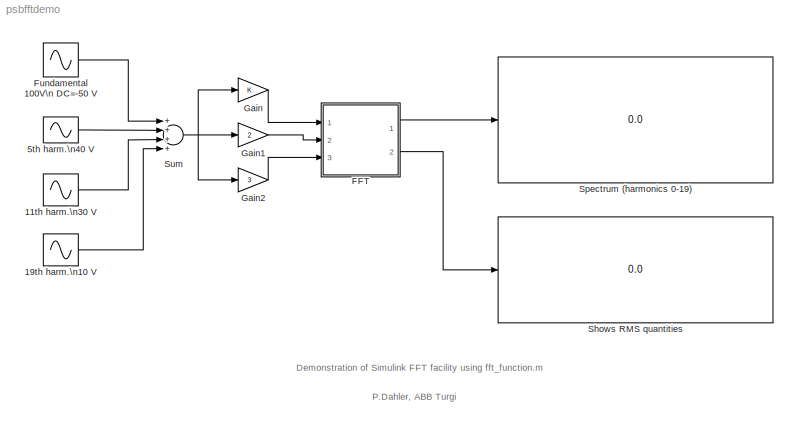
MODEL psbfftdemo
KIND model
BLOCK [Sin] 11th harm.\n30 V 
  Amplitude = 30
  Frequency = 11*50*2*pi
  Ports = [0, 1]
  SampleTime = 0
  SineType = Time based
BLOCK [Sin] 19th harm.\n10 V 
  Amplitude = 10
  Frequency = 19*50*2*pi
  Ports = [0, 1]
  SampleTime = 0
  SineType = Time based
BLOCK [Sin] 5th harm.\n40 V 
  Amplitude = 40
  Frequency = 5*50*2*pi
  Ports = [0, 1]
  SampleTime = 0
  SineType = Time based
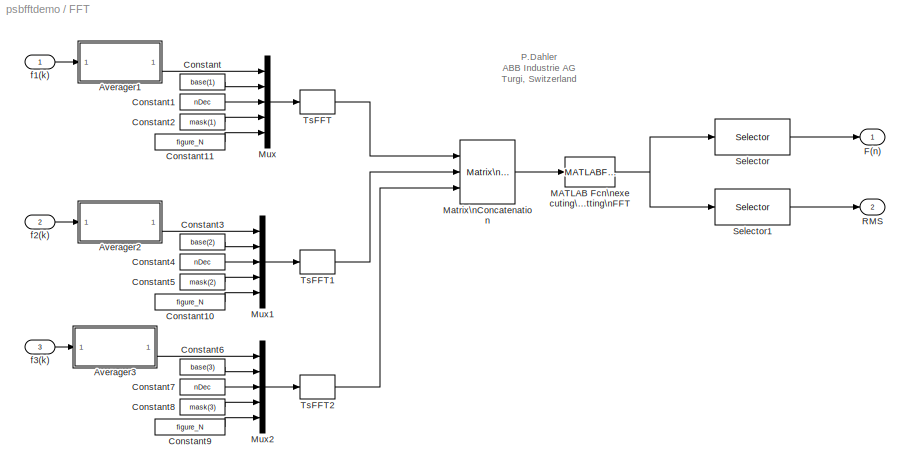
BLOCK [SubSystem] FFT
  MaskCallbackString = ||||||
  MaskDescription = This block  implements on-line FFT analysis  of 3  signals.\n\nIt can be used as a \"real time\" analyzer during simulation (note speed reduction !) or off line by reading the signals from workspace after simulation.\n\nThe F(n) output is a [N,3] matrix of the 3 signal spectra  (harmonic orders 0 to N-1), where N is the number of harmonics computed  given by : N= 1/f1/Ts/2.\nThe RMS output is a [5...<+393ch>
  MaskDisplay = color('blue');disp('FFT')
  MaskEnableString = on,on,on,on,on,on,on
  MaskIconFrame = on
  MaskIconOpaque = off
  MaskIconRotate = none
  MaskIconUnits = autoscale
  MaskInitialization = Navg=fix((1/f1)/Ts);
  MaskPromptString = Fundamental frequency f1 (Hz):|Sampling time Ts (s):|FFT Sampling time F(n)|Base peak value (1 for absolute , size=[1 nSignals ])|Decimals to display RMS values on spectrum (0 for no text)|Mask (nomally ones(1,nSignals))|Figure number
  MaskStyleString = edit,edit,edit,edit,edit,edit,edit
  MaskTabNameString = ,,,,,,
  MaskToolTipString = on,on,on,on,on,on,on
  MaskTunableValueString = on,on,on,on,on,on,on
  MaskType = Fast Fourier by Matlab Function
  MaskValueString = 50|500e-6|0.1|[1 1  1] |0|[1 -1 1]|1
  MaskVarAliasString = ,,,,,,
  MaskVariables = f1=@1;Ts=@2;TsFFT=@3;base=@4;nDec=@5;mask=@6;figure_N=@7;
  MaskVisibilityString = on,on,on,on,on,on,on
  MinAlgLoopOccurrences = off
  Ports = [3, 2]
  RTWSystemCode = Auto
  TreatAsAtomicUnit = off
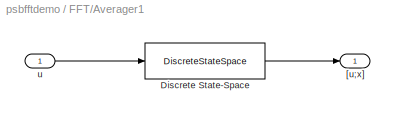
BLOCK [SubSystem] FFT/Averager1
  MaskCallbackString = ||
  MaskDescription = This block is a shift register storing values [u(k) u(k-1) ... u(k-(Navg-1))]' . This vector can be used for a FFT analysis.
  MaskDisplay = disp('Shift\\nRegister')
  MaskEnableString = on,on,on
  MaskHelp = This block is a shift register storing values [u(k) u(k-1) ... u(k-(Navg-1))]' . This vector can be used for a FFT analysis.
  MaskIconFrame = on
  MaskIconOpaque = off
  MaskIconRotate = none
  MaskIconUnits = autoscale
  MaskInitialization = %Discrete State Space model of averager\n%one scalar input\n%Navg sized output [in(k) in(k-1) .... in(k-(Navg-1))]\nQ=eye(Navg-1);\nA=[Q(:,2:length(Q))  Q(:,1)] ;\nA(1,Navg-1)=0;\nB=[1 ; zeros(Navg-2,1)];\nC=eye(Navg) ;\nC=C(:,2:length(C));\nD=[1 ; zeros(Navg-1,1)];\n\n\n\n  <repeated x3 — deduplicated; at blocks: Averager1, Averager2, Averager3>
  MaskPromptString = Number of Samples inl. in(k)|Inititial Condition|Sample Time (-1 for inherited)
  MaskStyleString = edit,edit,edit
  MaskTabNameString = ,,
  MaskToolTipString = on,on,on
  MaskTunableValueString = on,on,on
  MaskType = Shift Register with discrete state space block
  MaskValueString = Navg|0|Ts
  MaskVarAliasString = ,,
  MaskVariables = Navg=@1;x0=@2;Ts=@3;
  MaskVisibilityString = on,on,on
  MinAlgLoopOccurrences = off
  Ports = [1, 1]
  RTWSystemCode = Auto
  TreatAsAtomicUnit = off
BLOCK [DiscreteStateSpace] FFT/Averager1/Discrete State-Space
  A = A
  B = B
  C = C
  D = D
  SampleTime = Ts
  X0 = x0
BLOCK [Outport] FFT/Averager1/[u;x]
  BusOutputAsStruct = off
  IconDisplay = Port number
BLOCK [Inport] FFT/Averager1/u
  IconDisplay = Port number
  LatchInput = off
  Port = 1
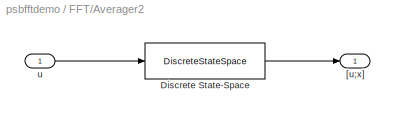
BLOCK [SubSystem] FFT/Averager2
  MaskCallbackString = ||
  MaskDescription = This block is a shift register storing values [u(k) u(k-1) ... u(k-(Navg-1))]' . This vector can be used for a FFT analysis.
  MaskDisplay = disp('Shift\\nRegister')
  MaskEnableString = on,on,on
  MaskHelp = This block is a shift register storing values [u(k) u(k-1) ... u(k-(Navg-1))]' . This vector can be used for a FFT analysis.
  MaskIconFrame = on
  MaskIconOpaque = off
  MaskIconRotate = none
  MaskIconUnits = autoscale
  MaskPromptString = Number of Samples inl. in(k)|Inititial Condition|Sample Time (-1 for inherited)
  MaskStyleString = edit,edit,edit
  MaskTabNameString = ,,
  MaskToolTipString = on,on,on
  MaskTunableValueString = on,on,on
  MaskType = Shift Register with discrete state space block
  MaskValueString = Navg|0|Ts
  MaskVarAliasString = ,,
  MaskVariables = Navg=@1;x0=@2;Ts=@3;
  MaskVisibilityString = on,on,on
  MinAlgLoopOccurrences = off
  Ports = [1, 1]
  RTWSystemCode = Auto
  TreatAsAtomicUnit = off
BLOCK [DiscreteStateSpace] FFT/Averager2/Discrete State-Space
  A = A
  B = B
  C = C
  D = D
  SampleTime = Ts
  X0 = x0
BLOCK [Outport] FFT/Averager2/[u;x]
  BusOutputAsStruct = off
  IconDisplay = Port number
BLOCK [Inport] FFT/Averager2/u
  IconDisplay = Port number
  LatchInput = off
  Port = 1
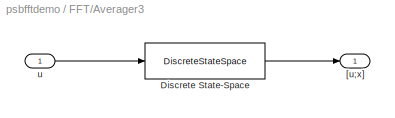
BLOCK [SubSystem] FFT/Averager3
  MaskCallbackString = ||
  MaskDescription = This block is a shift register storing values [u(k) u(k-1) ... u(k-(Navg-1))]' . This vector can be used for a FFT analysis.
  MaskDisplay = disp('Shift\\nRegister')
  MaskEnableString = on,on,on
  MaskHelp = This block is a shift register storing values [u(k) u(k-1) ... u(k-(Navg-1))]' . This vector can be used for a FFT analysis.
  MaskIconFrame = on
  MaskIconOpaque = off
  MaskIconRotate = none
  MaskIconUnits = autoscale
  MaskPromptString = Number of Samples inl. in(k)|Inititial Condition|Sample Time (-1 for inherited)
  MaskStyleString = edit,edit,edit
  MaskTabNameString = ,,
  MaskToolTipString = on,on,on
  MaskTunableValueString = on,on,on
  MaskType = Shift Register with discrete state space block
  MaskValueString = Navg|0|Ts
  MaskVarAliasString = ,,
  MaskVariables = Navg=@1;x0=@2;Ts=@3;
  MaskVisibilityString = on,on,on
  MinAlgLoopOccurrences = off
  Ports = [1, 1]
  RTWSystemCode = Auto
  TreatAsAtomicUnit = off
BLOCK [DiscreteStateSpace] FFT/Averager3/Discrete State-Space
  A = A
  B = B
  C = C
  D = D
  SampleTime = Ts
  X0 = x0
BLOCK [Outport] FFT/Averager3/[u;x]
  BusOutputAsStruct = off
  IconDisplay = Port number
BLOCK [Inport] FFT/Averager3/u
  IconDisplay = Port number
  LatchInput = off
  Port = 1
BLOCK [Constant] FFT/Constant
  Value = base(1)
BLOCK [Constant] FFT/Constant1
  Value = nDec
BLOCK [Constant] FFT/Constant10
  Value = figure_N
BLOCK [Constant] FFT/Constant11
  Value = figure_N
BLOCK [Constant] FFT/Constant2
  Value = mask(1)
BLOCK [Constant] FFT/Constant3
  Value = base(2)
BLOCK [Constant] FFT/Constant4
  Value = nDec
BLOCK [Constant] FFT/Constant5
  Value = mask(2)
BLOCK [Constant] FFT/Constant6
  Value = base(3)
BLOCK [Constant] FFT/Constant7
  Value = nDec
BLOCK [Constant] FFT/Constant8
  Value = mask(3)
BLOCK [Constant] FFT/Constant9
  Value = figure_N
BLOCK [Outport] FFT/F(n)
  BusOutputAsStruct = off
  IconDisplay = Port number
BLOCK [MATLABFcn] FFT/MATLAB Fcn\nexecuting\nand plotting\nFFT
  MATLABFcn = fft_function
  Output1D = off
  OutputDimensions = [ceil(Navg/2) + 5  3]
BLOCK [Reference] FFT/Matrix\nConcatenation  REF=simulink/Math\nOperations/Matrix\nConcatenation
  Ports = [3, 1]
  SourceBlock = simulink/Math\nOperations/Matrix\nConcatenation
  SourceType = Matrix Concatenation
  catMethod = Horizontal
  numInports = 3
BLOCK [Mux] FFT/Mux
  DisplayOption = bar
  Inputs = 5
  Ports = [5, 1]
BLOCK [Mux] FFT/Mux1
  DisplayOption = bar
  Inputs = 5
  Ports = [5, 1]
BLOCK [Mux] FFT/Mux2
  DisplayOption = bar
  Inputs = 5
  Ports = [5, 1]
BLOCK [Outport] FFT/RMS
  BusOutputAsStruct = off
  IconDisplay = Port number
  Port = 2
BLOCK [Selector] FFT/Selector
  Columns = 1:3
  Elements = [1:ceil(Navg/2)]
  InputPortWidth = ceil(Navg/2) + 5
  InputType = Matrix
  Ports = [1, 1]
  Rows = 1:ceil(Navg/2)
BLOCK [Selector] FFT/Selector1
  Columns = 1:3
  Elements = [1:ceil(Navg/2)]
  InputPortWidth = ceil(Navg/2) + 5
  InputType = Matrix
  Ports = [1, 1]
  Rows = ceil(Navg/2)+1 : ceil(Navg/2)+5
BLOCK [ZeroOrderHold] FFT/TsFFT
  SampleTime = TsFFT
BLOCK [ZeroOrderHold] FFT/TsFFT1
  SampleTime = TsFFT
BLOCK [ZeroOrderHold] FFT/TsFFT2
  SampleTime = TsFFT
BLOCK [Inport] FFT/f1(k)
  IconDisplay = Port number
  LatchInput = off
  Port = 1
BLOCK [Inport] FFT/f2(k)
  IconDisplay = Port number
  LatchInput = off
  Port = 2
BLOCK [Inport] FFT/f3(k)
  IconDisplay = Port number
  LatchInput = off
  Port = 3
BLOCK [Sin] Fundamental 100V\n DC=-50 V
  Amplitude = 100
  Bias = -50
  Frequency = 50*2*pi
  Phase = pi/2
  Ports = [0, 1]
  SampleTime = 0
  SineType = Time based
BLOCK [Gain] Gain
BLOCK [Gain] Gain1
  Gain = 2
BLOCK [Gain] Gain2
  Gain = 3
BLOCK [Display] Shows RMS quantities
  Decimation = 1
  Format = bank
  Ports = [1]
BLOCK [Display] Spectrum (harmonics 0-19)
  Decimation = 1
  Format = bank
  Ports = [1]
BLOCK [Sum] Sum
  Inputs = ++++
  Ports = [4, 1]
ANNOTATION (root): Demonstration of Simulink FFT facility using fft_function.m
ANNOTATION (root): P.Dahler, ABB Turgi
ANNOTATION FFT: P.Dahler\nABB Industrie AG\nTurgi, Switzerland
LINE 11th harm.\n30 V :1 -> Sum:3
LINE 19th harm.\n10 V :1 -> Sum:4
LINE 5th harm.\n40 V :1 -> Sum:2
LINE FFT/Averager1/Discrete State-Space:1 -> FFT/Averager1/[u;x]:1
LINE FFT/Averager1/u:1 -> FFT/Averager1/Discrete State-Space:1
LINE FFT/Averager1:1 -> FFT/Mux:1
LINE FFT/Averager2/Discrete State-Space:1 -> FFT/Averager2/[u;x]:1
LINE FFT/Averager2/u:1 -> FFT/Averager2/Discrete State-Space:1
LINE FFT/Averager2:1 -> FFT/Mux1:1
LINE FFT/Averager3/Discrete State-Space:1 -> FFT/Averager3/[u;x]:1
LINE FFT/Averager3/u:1 -> FFT/Averager3/Discrete State-Space:1
LINE FFT/Averager3:1 -> FFT/Mux2:1
LINE FFT/Constant10:1 -> FFT/Mux1:5
LINE FFT/Constant11:1 -> FFT/Mux:5
LINE FFT/Constant1:1 -> FFT/Mux:3
LINE FFT/Constant2:1 -> FFT/Mux:4
LINE FFT/Constant3:1 -> FFT/Mux1:2
LINE FFT/Constant4:1 -> FFT/Mux1:3
LINE FFT/Constant5:1 -> FFT/Mux1:4
LINE FFT/Constant6:1 -> FFT/Mux2:2
LINE FFT/Constant7:1 -> FFT/Mux2:3
LINE FFT/Constant8:1 -> FFT/Mux2:4
LINE FFT/Constant9:1 -> FFT/Mux2:5
LINE FFT/Constant:1 -> FFT/Mux:2
NET FFT/MATLAB Fcn\nexecuting\nand plotting\nFFT:1 -> FFT/Selector1:1, FFT/Selector:1
LINE FFT/Matrix\nConcatenation:1 -> FFT/MATLAB Fcn\nexecuting\nand plotting\nFFT:1
LINE FFT/Mux1:1 -> FFT/TsFFT1:1
LINE FFT/Mux2:1 -> FFT/TsFFT2:1
LINE FFT/Mux:1 -> FFT/TsFFT:1
LINE FFT/Selector1:1 -> FFT/RMS:1
LINE FFT/Selector:1 -> FFT/F(n):1
LINE FFT/TsFFT1:1 -> FFT/Matrix\nConcatenation:2
LINE FFT/TsFFT2:1 -> FFT/Matrix\nConcatenation:3
LINE FFT/TsFFT:1 -> FFT/Matrix\nConcatenation:1
LINE FFT/f1(k):1 -> FFT/Averager1:1
LINE FFT/f2(k):1 -> FFT/Averager2:1
LINE FFT/f3(k):1 -> FFT/Averager3:1
LINE FFT:1 -> Spectrum (harmonics 0-19):1
LINE FFT:2 -> Shows RMS quantities:1
LINE Fundamental 100V\n DC=-50 V:1 -> Sum:1
LINE Gain1:1 -> FFT:2
LINE Gain2:1 -> FFT:3
LINE Gain:1 -> FFT:1
NET Sum:1 -> Gain1:1, Gain2:1, Gain:1
note: NET lines group one-source signal fan-out (src -> all destinations, sorted); 1:1 wires keep LINE
